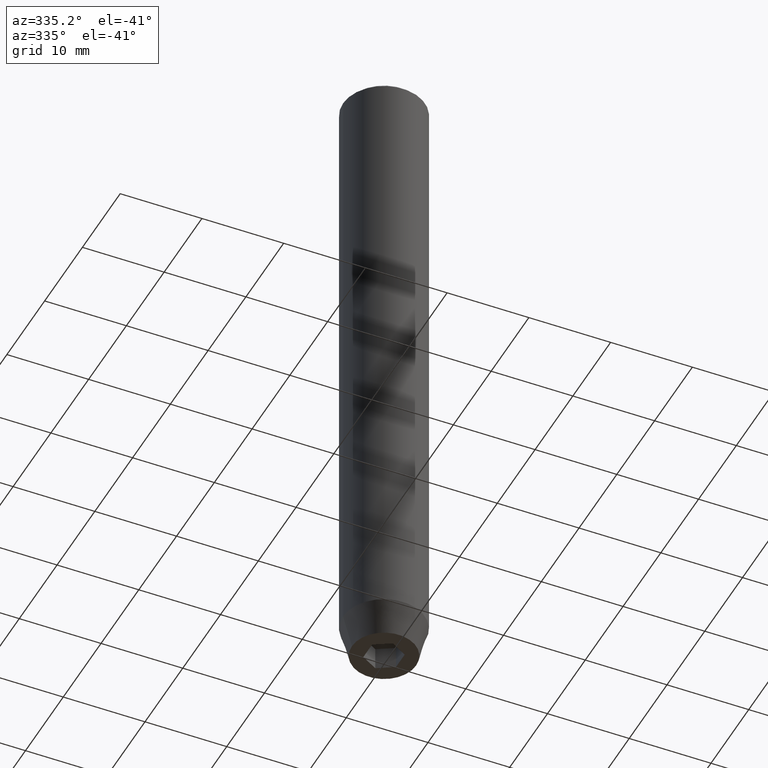
[diagram: clean part render]
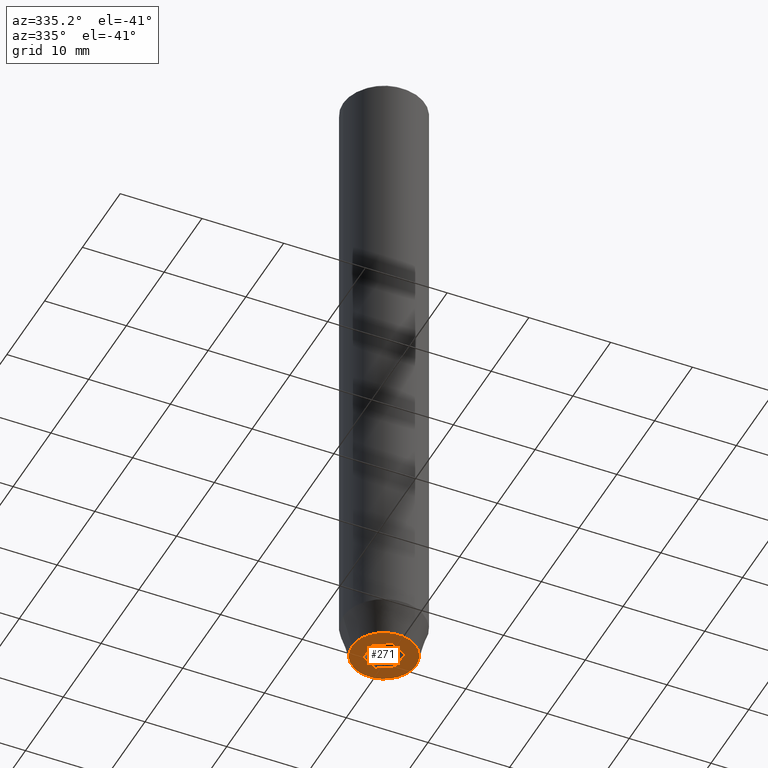
[diagram: same view with one face highlighted and labeled with its STEP entity id]
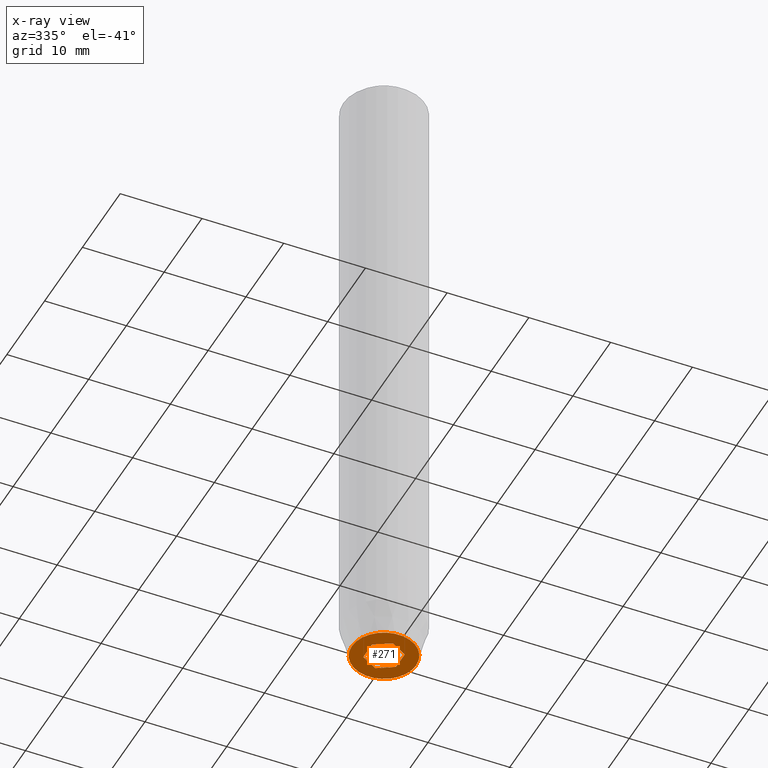
[diagram: x-ray of the same camera — body ghosted, the highlighted face saturated]
A machine part, auxiliary view. The second image highlights one B-rep face of the part: STEP entity #271.
The next image is the same camera in x-ray: the body ghosted, the highlighted face saturated — about 0% of this face is hidden behind the body in this view.
In plain terms, the highlighted planar face has unit normal (0, 0, -1).
Its self-contained STEP definition (entity closure, byte-faithful):
#13 = VERTEX_POINT ( 'NONE', #94 ) ;
#16 = CIRCLE ( 'NONE', #379, 3.928203230275509661 ) ;
#28 = ORIENTED_EDGE ( 'NONE', *, *, #510, .F. ) ;
#34 = DIRECTION ( 'NONE',  ( -0.000000000000000000, -0.000000000000000000, 1.000000000000000000 ) ) ;
#36 = AXIS2_PLACEMENT_3D ( 'NONE', #217, #164, #259 ) ;
#69 = CARTESIAN_POINT ( 'NONE',  ( 2.168404344971008868E-16, -2.309401076758503812, -80.00000000000001421 ) ) ;
#75 = CARTESIAN_POINT ( 'NONE',  ( 0.9999999999999997780, -1.732050807568878747, -80.00000000000001421 ) ) ;
#76 = VECTOR ( 'NONE', #214, 1000.000000000000114 ) ;
#84 = VERTEX_POINT ( 'NONE', #322 ) ;
#94 = CARTESIAN_POINT ( 'NONE',  ( -1.084202172485504434E-16, 2.309401076758503812, -80.00000000000001421 ) ) ;
#100 = DIRECTION ( 'NONE',  ( 0.000000000000000000, -1.000000000000000000, 0.000000000000000000 ) ) ;
#104 = VECTOR ( 'NONE', #442, 1000.000000000000000 ) ;
#120 = LINE ( 'NONE', #128, #104 ) ;
#124 = DIRECTION ( 'NONE',  ( -1.000000000000000000, 0.000000000000000000, -0.000000000000000000 ) ) ;
#128 = CARTESIAN_POINT ( 'NONE',  ( 1.000000000000000444, 1.732050807568877637, -80.00000000000001421 ) ) ;
#156 = VERTEX_POINT ( 'NONE', #244 ) ;
#164 = DIRECTION ( 'NONE',  ( -0.000000000000000000, -0.000000000000000000, 1.000000000000000000 ) ) ;
#183 = CARTESIAN_POINT ( 'NONE',  ( 3.928203230275509661, 0.000000000000000000, -80.00000000000001421 ) ) ;
#184 = EDGE_LOOP ( 'NONE', ( #458, #450 ) ) ;
#193 = EDGE_CURVE ( 'NONE', #156, #441, #293, .T. ) ;
#194 = FACE_OUTER_BOUND ( 'NONE', #184, .T. ) ;
#197 = CARTESIAN_POINT ( 'NONE',  ( -1.000000000000000444, 1.732050807568877637, -80.00000000000001421 ) ) ;
#199 = CARTESIAN_POINT ( 'NONE',  ( 2.000000000000000888, 1.154700538379251462, -80.00000000000001421 ) ) ;
#206 = EDGE_CURVE ( 'NONE', #441, #13, #514, .T. ) ;
#208 = VERTEX_POINT ( 'NONE', #328 ) ;
#209 = VECTOR ( 'NONE', #423, 1000.000000000000000 ) ;
#214 = DIRECTION ( 'NONE',  ( -0.8660254037844388186, -0.4999999999999996114, 0.000000000000000000 ) ) ;
#217 = CARTESIAN_POINT ( 'NONE',  ( 0.000000000000000000, 0.000000000000000000, -80.00000000000001421 ) ) ;
#244 = CARTESIAN_POINT ( 'NONE',  ( -1.999999999999998668, -1.154700538379252572, -80.00000000000001421 ) ) ;
#259 = DIRECTION ( 'NONE',  ( 1.000000000000000000, 0.000000000000000000, 0.000000000000000000 ) ) ;
#265 = EDGE_LOOP ( 'NONE', ( #333, #406, #278, #449, #28, #359 ) ) ;
#268 = VERTEX_POINT ( 'NONE', #199 ) ;
#271 = ADVANCED_FACE ( 'NONE', ( #334, #194 ), #378, .T. ) ;
#278 = ORIENTED_EDGE ( 'NONE', *, *, #298, .F. ) ;
#286 = DIRECTION ( 'NONE',  ( 0.8660254037844385966, 0.5000000000000001110, 0.000000000000000000 ) ) ;
#293 = LINE ( 'NONE', #471, #209 ) ;
#296 = CARTESIAN_POINT ( 'NONE',  ( 0.000000000000000000, 0.000000000000000000, -80.00000000000001421 ) ) ;
#298 = EDGE_CURVE ( 'NONE', #396, #156, #487, .T. ) ;
#312 = EDGE_CURVE ( 'NONE', #542, #84, #419, .T. ) ;
#322 = CARTESIAN_POINT ( 'NONE',  ( -3.928203230275509661, 5.466947754046981113E-16, -80.00000000000001421 ) ) ;
#323 = CARTESIAN_POINT ( 'NONE',  ( 2.000000000000000888, 0.000000000000000000, -80.00000000000001421 ) ) ;
#328 = CARTESIAN_POINT ( 'NONE',  ( 2.000000000000000888, -1.154700538379252572, -80.00000000000001421 ) ) ;
#333 = ORIENTED_EDGE ( 'NONE', *, *, #206, .F. ) ;
#334 = FACE_BOUND ( 'NONE', #265, .T. ) ;
#337 = VECTOR ( 'NONE', #286, 1000.000000000000000 ) ;
#345 = DIRECTION ( 'NONE',  ( 1.000000000000000000, 0.000000000000000000, 0.000000000000000000 ) ) ;
#349 = CARTESIAN_POINT ( 'NONE',  ( -1.000000000000000222, -1.732050807568877637, -80.00000000000001421 ) ) ;
#353 = DIRECTION ( 'NONE',  ( -0.8660254037844387076, 0.5000000000000001110, 0.000000000000000000 ) ) ;
#359 = ORIENTED_EDGE ( 'NONE', *, *, #362, .F. ) ;
#362 = EDGE_CURVE ( 'NONE', #13, #268, #120, .T. ) ;
#378 = PLANE ( 'NONE',  #438 ) ;
#379 = AXIS2_PLACEMENT_3D ( 'NONE', #296, #34, #345 ) ;
#380 = EDGE_CURVE ( 'NONE', #84, #542, #16, .T. ) ;
#396 = VERTEX_POINT ( 'NONE', #69 ) ;
#406 = ORIENTED_EDGE ( 'NONE', *, *, #193, .F. ) ;
#419 = CIRCLE ( 'NONE', #36, 3.928203230275509661 ) ;
#421 = VECTOR ( 'NONE', #100, 1000.000000000000000 ) ;
#423 = DIRECTION ( 'NONE',  ( 5.633679745264339711E-16, 1.000000000000000000, 0.000000000000000000 ) ) ;
#425 = EDGE_CURVE ( 'NONE', #208, #396, #484, .T. ) ;
#438 = AXIS2_PLACEMENT_3D ( 'NONE', #559, #447, #124 ) ;
#441 = VERTEX_POINT ( 'NONE', #576 ) ;
#442 = DIRECTION ( 'NONE',  ( 0.8660254037844385966, -0.5000000000000001110, 0.000000000000000000 ) ) ;
#447 = DIRECTION ( 'NONE',  ( 0.000000000000000000, 0.000000000000000000, -1.000000000000000000 ) ) ;
#449 = ORIENTED_EDGE ( 'NONE', *, *, #425, .F. ) ;
#450 = ORIENTED_EDGE ( 'NONE', *, *, #380, .F. ) ;
#458 = ORIENTED_EDGE ( 'NONE', *, *, #312, .F. ) ;
#471 = CARTESIAN_POINT ( 'NONE',  ( -1.999999999999998224, 1.126735949052866956E-15, -80.00000000000001421 ) ) ;
#484 = LINE ( 'NONE', #75, #76 ) ;
#487 = LINE ( 'NONE', #349, #522 ) ;
#508 = LINE ( 'NONE', #323, #421 ) ;
#510 = EDGE_CURVE ( 'NONE', #268, #208, #508, .T. ) ;
#514 = LINE ( 'NONE', #197, #337 ) ;
#522 = VECTOR ( 'NONE', #353, 999.9999999999998863 ) ;
#542 = VERTEX_POINT ( 'NONE', #183 ) ;
#559 = CARTESIAN_POINT ( 'NONE',  ( 0.000000000000000000, 3.928203230275509661, -80.00000000000001421 ) ) ;
#576 = CARTESIAN_POINT ( 'NONE',  ( -1.999999999999997780, 1.154700538379253238, -80.00000000000001421 ) ) ;